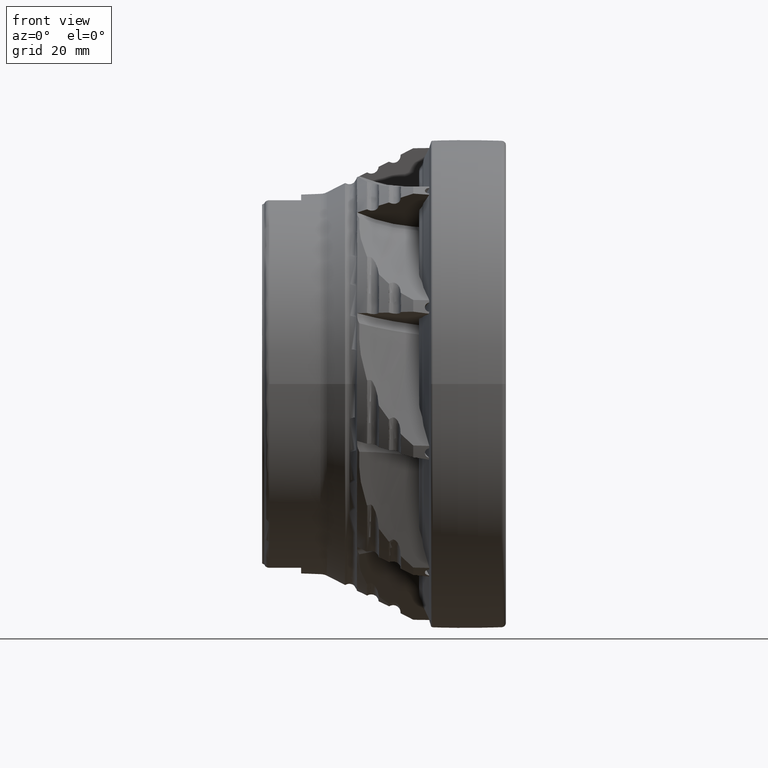
[diagram: clean part render]
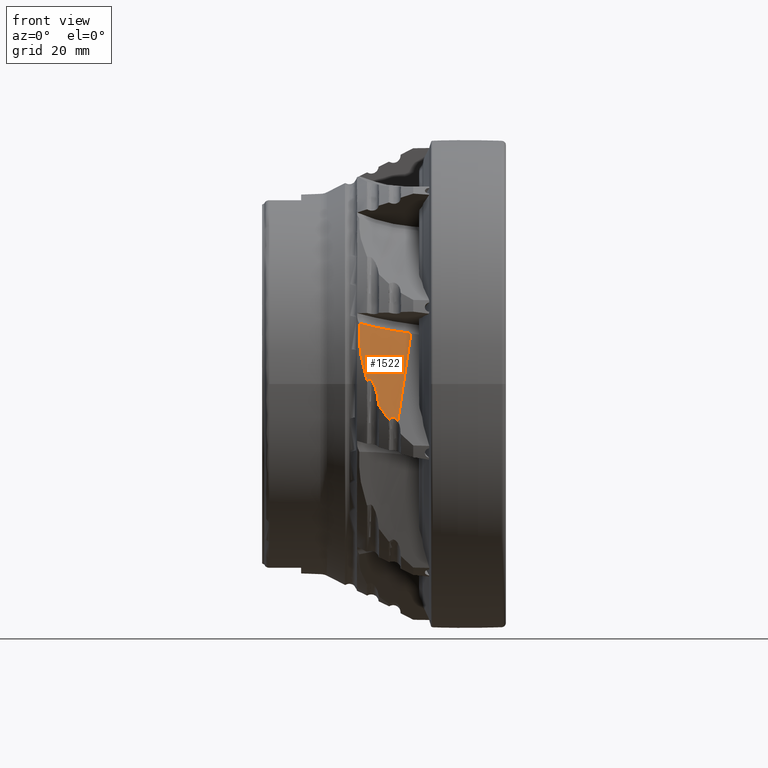
[diagram: same view with one face highlighted and labeled with its STEP entity id]
A machine part, front view. The second image highlights one B-rep face of the part: STEP entity #1522.
In plain terms, the highlighted cylindrical surface (partial cylindrical patch) has radius 28 mm, axis along (0.1392, 0.306, 0.9418).
Its self-contained STEP definition (entity closure, byte-faithful):
#44 = CARTESIAN_POINT ( 'NONE',  ( -22.96875926489109077, -45.00472758930278872, -7.251594507267260070 ) ) ;
#158 = CARTESIAN_POINT ( 'NONE',  ( -22.98806546424032504, -45.00397832215800520, -7.244968007142776223 ) ) ;
#326 = CARTESIAN_POINT ( 'NONE',  ( -22.11025351607506551, -44.83420994015719430, -6.859937855270453078 ) ) ;
#380 = CARTESIAN_POINT ( 'NONE',  ( -18.49250115703377517, -39.21173144194869309, 10.37945276571883646 ) ) ;
#395 = CARTESIAN_POINT ( 'NONE',  ( -23.05000000000023164, -44.99304776565187325, -7.196274121405544122 ) ) ;
#603 = CARTESIAN_POINT ( 'NONE',  ( -28.18350695013244334, -43.01689287361728020, 2.823640464598796029 ) ) ;
#690 = CARTESIAN_POINT ( 'NONE',  ( -21.89676350524547388, -44.83994210318814311, -6.902054841344533287 ) ) ;
#699 = CARTESIAN_POINT ( 'NONE',  ( -27.53345745296495650, -43.37508894989922226, 0.8934479850767653719 ) ) ;
#890 = CARTESIAN_POINT ( 'NONE',  ( -26.85634870981015965, -43.17586925565611722, 0.9426722451653622992 ) ) ;
#909 = CARTESIAN_POINT ( 'NONE',  ( -22.11025351607506551, -44.83420994015719430, -6.859937855270453078 ) ) ;
#948 = DIRECTION ( 'NONE',  ( 0.1391731009600655766, 0.3060096622280080170, 0.9418008996556862522 ) ) ;
#1019 = CARTESIAN_POINT ( 'NONE',  ( -24.42282978799860516, -44.57693258806386893, -5.433127917040545540 ) ) ;
#1168 = VERTEX_POINT ( 'NONE', #2145 ) ;
#1389 = CARTESIAN_POINT ( 'NONE',  ( -29.08411906360953836, -40.77115350027608542, 12.45129887066027585 ) ) ;
#1522 = ADVANCED_FACE ( 'NONE', ( #11187 ), #9491, .F. ) ;
#1545 = EDGE_CURVE ( 'NONE', #11938, #2706, #5446, .T. ) ;
#1830 = ORIENTED_EDGE ( 'NONE', *, *, #5744, .F. ) ;
#1848 = CARTESIAN_POINT ( 'NONE',  ( -22.93827435148160632, -45.00309780509473967, -7.253017972813460723 ) ) ;
#2089 = CARTESIAN_POINT ( 'NONE',  ( -22.95870276764276241, -45.00436611127459940, -7.252630009108299802 ) ) ;
#2102 = CIRCLE ( 'NONE', #17927, 28.00000000000000000 ) ;
#2145 = CARTESIAN_POINT ( 'NONE',  ( -25.12498767638395591, -44.27270740536653193, -4.049990881068440629 ) ) ;
#2706 = VERTEX_POINT ( 'NONE', #12074 ) ;
#2728 = VERTEX_POINT ( 'NONE', #17360 ) ;
#2803 = CARTESIAN_POINT ( 'NONE',  ( -27.36225597063976167, -43.36263909710893216, 0.7664139328724189903 ) ) ;
#3077 = EDGE_CURVE ( 'NONE', #5800, #1168, #12152, .T. ) ;
#3135 = CARTESIAN_POINT ( 'NONE',  ( -23.05000000000023164, -44.99304776565187325, -7.196274121405544122 ) ) ;
#3186 = CARTESIAN_POINT ( 'NONE',  ( -25.14768867587277867, -44.14983649275727373, -3.628397477588554132 ) ) ;
#3277 = CARTESIAN_POINT ( 'NONE',  ( -25.11136169306228894, -44.31470260491349222, -4.197296924912500060 ) ) ;
#3285 = CARTESIAN_POINT ( 'NONE',  ( -27.36225597063976167, -43.36263909710893216, 0.7664139328724189903 ) ) ;
#3639 = CARTESIAN_POINT ( 'NONE',  ( -22.91528225458630175, -44.99991334662693987, -7.247817678363159821 ) ) ;
#3752 = CARTESIAN_POINT ( 'NONE',  ( -22.86225597063991444, -44.98414197917850288, -7.208859829057428392 ) ) ;
#3946 = CARTESIAN_POINT ( 'NONE',  ( -25.12498767638395591, -44.27270740536653193, -4.049990881068440629 ) ) ;
#4036 = CARTESIAN_POINT ( 'NONE',  ( -21.61738121475465491, -44.88450016146625643, -7.063010324410459617 ) ) ;
#4369 = CARTESIAN_POINT ( 'NONE',  ( -25.01442926651028742, -44.38396834700520088, -4.479609703247692920 ) ) ;
#4513 = B_SPLINE_CURVE_WITH_KNOTS ( 'NONE', 3,
 ( #21622, #14400, #14513, #9354, #5833, #21516, #6172, #9579, #699, #11158 ),
 .UNSPECIFIED., .F., .F.,
 ( 4, 2, 2, 2, 4 ),
 ( 3.230959094265456331E-07, 4.019676544924590444E-05, 8.007043498906527294E-05, 0.0001598177740687010148, 0.0003193124522279801422 ),
 .UNSPECIFIED. ) ;
#4801 = VERTEX_POINT ( 'NONE', #380 ) ;
#5446 = B_SPLINE_CURVE_WITH_KNOTS ( 'NONE', 3,
 ( #5645, #603, #21204, #20397, #15099, #15201, #21649, #1389 ),
 .UNSPECIFIED., .F., .F.,
 ( 4, 2, 2, 4 ),
 ( 6.260831615518534369E-07, 0.005950258096889476413, 0.008925074103753441457, 0.01189989011061740737 ),
 .UNSPECIFIED. ) ;
#5645 = CARTESIAN_POINT ( 'NONE',  ( -27.54999999999981952, -43.36597352797302563, 0.9425677829043680456 ) ) ;
#5654 = CARTESIAN_POINT ( 'NONE',  ( -22.94863317182933926, -45.00400416242209189, -7.253666859688163271 ) ) ;
#5721 = B_SPLINE_CURVE_WITH_KNOTS ( 'NONE', 3,
 ( #12061, #3186, #13619, #13717, #19057, #15529, #6763, #8342, #17003, #6861, #11952, #10157, #18818, #20291 ),
 .UNSPECIFIED., .F., .F.,
 ( 4, 2, 2, 2, 2, 2, 4 ),
 ( 3.858238433608814822E-06, 0.001313378694123256514, 0.002622899149812903986, 0.003932419605502552110, 0.004587179833347377472, 0.004914559947269786684, 0.005241940061192195029 ),
 .UNSPECIFIED. ) ;
#5744 = EDGE_CURVE ( 'NONE', #14213, #11938, #4513, .T. ) ;
#5800 = VERTEX_POINT ( 'NONE', #15282 ) ;
#5833 = CARTESIAN_POINT ( 'NONE',  ( -27.41747669478786165, -43.38528487005625323, 0.7410884560109195496 ) ) ;
#5921 = VERTEX_POINT ( 'NONE', #21847 ) ;
#6101 = CARTESIAN_POINT ( 'NONE',  ( -18.18918041566171695, -65.17438130151347764, 21.08453608148492719 ) ) ;
#6151 = CARTESIAN_POINT ( 'NONE',  ( -27.26372194362870971, -43.30689945525789852, 0.8662397153372038971 ) ) ;
#6172 = CARTESIAN_POINT ( 'NONE',  ( -27.47128123409750344, -43.38971488848753211, 0.7790722204139125528 ) ) ;
#6272 = CARTESIAN_POINT ( 'NONE',  ( -27.14420331115535490, -43.25388783088913414, 0.9376140105472545727 ) ) ;
#6470 = ORIENTED_EDGE ( 'NONE', *, *, #11909, .F. ) ;
#6763 = CARTESIAN_POINT ( 'NONE',  ( -25.77122065532248385, -43.40572070034295393, -0.7287933845542799993 ) ) ;
#6861 = CARTESIAN_POINT ( 'NONE',  ( -26.27326181786784431, -43.20329282431373485, 0.3477560161948084483 ) ) ;
#6934 = ORIENTED_EDGE ( 'NONE', *, *, #10873, .F. ) ;
#7133 = CARTESIAN_POINT ( 'NONE',  ( -22.87097694937581949, -44.98772616340179553, -7.218427777095062225 ) ) ;
#7272 = CARTESIAN_POINT ( 'NONE',  ( -22.76711116295971493, -44.94503896938430643, -7.104474690862654818 ) ) ;
#7414 = CARTESIAN_POINT ( 'NONE',  ( -21.15278180356288118, -45.06107715933467261, -7.622982251926101682 ) ) ;
#7421 = B_SPLINE_CURVE_WITH_KNOTS ( 'NONE', 3,
 ( #19790, #18210, #7731, #890, #14605, #17999, #6272, #6151, #12785, #2803 ),
 .UNSPECIFIED., .F., .F.,
 ( 4, 2, 2, 2, 4 ),
 ( 0.005241940061192195029, 0.005461511858826388101, 0.005681083656460580306, 0.005900655454094773378, 0.006120227251728966450 ),
 .UNSPECIFIED. ) ;
#7527 = CARTESIAN_POINT ( 'NONE',  ( -22.00294876315580694, -44.83284190179112016, -6.868878886604062650 ) ) ;
#7731 = CARTESIAN_POINT ( 'NONE',  ( -26.72532341960263480, -43.16139027569173692, 0.8755269804970381431 ) ) ;
#7785 = DIRECTION ( 'NONE',  ( 0.0000000000000000000, -0.9510565162951521989, 0.3090169943749516701 ) ) ;
#7858 = ORIENTED_EDGE ( 'NONE', *, *, #16400, .F. ) ;
#8342 = CARTESIAN_POINT ( 'NONE',  ( -26.02107818437410103, -43.28496242148830220, -0.1306858168741273918 ) ) ;
#8649 = EDGE_CURVE ( 'NONE', #5921, #13513, #13527, .T. ) ;
#8693 = EDGE_LOOP ( 'NONE', ( #1830, #7858, #14010, #18773, #6470, #11283, #18207, #6934, #14919, #9040, #19978 ) ) ;
#8933 = CARTESIAN_POINT ( 'NONE',  ( -23.01398219335900919, -45.00141019264476938, -7.231046609232405054 ) ) ;
#8955 = EDGE_CURVE ( 'NONE', #2728, #5921, #18670, .T. ) ;
#9034 = CARTESIAN_POINT ( 'NONE',  ( -22.97875511630827461, -45.00456267910302444, -7.248881064218547721 ) ) ;
#9040 = ORIENTED_EDGE ( 'NONE', *, *, #16916, .T. ) ;
#9221 = CARTESIAN_POINT ( 'NONE',  ( -21.70473097207393209, -44.86585601582584104, -6.999265809534000127 ) ) ;
#9302 = VECTOR ( 'NONE', #10486, 999.9999999999998863 ) ;
#9354 = CARTESIAN_POINT ( 'NONE',  ( -27.40375987371563582, -43.38162821349826714, 0.7404000846521376911 ) ) ;
#9491 = CYLINDRICAL_SURFACE ( 'NONE', #14505, 27.99999999999985434 ) ;
#9579 = CARTESIAN_POINT ( 'NONE',  ( -27.51483147124376316, -43.38339073032499726, 0.8451716257296003620 ) ) ;
#10157 = CARTESIAN_POINT ( 'NONE',  ( -26.45778736481225835, -43.16935923649494100, 0.6167859982158101495 ) ) ;
#10486 = DIRECTION ( 'NONE',  ( 0.1391731009600655766, 0.3060096622280109591, 0.9418008996556852530 ) ) ;
#10873 = EDGE_CURVE ( 'NONE', #22190, #2728, #21759, .T. ) ;
#10884 = CARTESIAN_POINT ( 'NONE',  ( -22.25441438182830822, -44.83604786056488933, -6.847925835460367594 ) ) ;
#11004 = CARTESIAN_POINT ( 'NONE',  ( -22.86225597063991444, -44.98414197917850288, -7.208859829057428392 ) ) ;
#11158 = CARTESIAN_POINT ( 'NONE',  ( -27.54999999999981952, -43.36597352797302563, 0.9425677829043680456 ) ) ;
#11187 = FACE_OUTER_BOUND ( 'NONE', #8693, .T. ) ;
#11283 = ORIENTED_EDGE ( 'NONE', *, *, #8649, .F. ) ;
#11518 = B_SPLINE_CURVE_WITH_KNOTS ( 'NONE', 3,
 ( #13010, #19700, #1019, #4369 ),
 .UNSPECIFIED., .F., .F.,
 ( 4, 4 ),
 ( 3.159450510403044887E-07, 0.003407694063517875595 ),
 .UNSPECIFIED. ) ;
#11909 = EDGE_CURVE ( 'NONE', #13513, #5800, #11518, .T. ) ;
#11938 = VERTEX_POINT ( 'NONE', #15458 ) ;
#11952 = CARTESIAN_POINT ( 'NONE',  ( -26.33046585146527718, -43.19006534874925052, 0.4397182034967569986 ) ) ;
#12061 = CARTESIAN_POINT ( 'NONE',  ( -25.12498767638395591, -44.27270740536653193, -4.049990881068440629 ) ) ;
#12074 = CARTESIAN_POINT ( 'NONE',  ( -29.08411906360953836, -40.77115350027608542, 12.45129887066027585 ) ) ;
#12152 = B_SPLINE_CURVE_WITH_KNOTS ( 'NONE', 3,
 ( #13494, #12163, #20396, #3277, #14169, #3946 ),
 .UNSPECIFIED., .F., .F.,
 ( 4, 2, 4 ),
 ( 3.795735971186339277E-07, 0.0002305850263714441203, 0.0004607904791457695945 ),
 .UNSPECIFIED. ) ;
#12163 = CARTESIAN_POINT ( 'NONE',  ( -25.05482573333785012, -44.37079207852298168, -4.414500168347826659 ) ) ;
#12165 = DIRECTION ( 'NONE',  ( 0.1391731009600655766, 0.3060096622280080170, 0.9418008996556862522 ) ) ;
#12277 = EDGE_CURVE ( 'NONE', #22190, #4801, #18718, .T. ) ;
#12586 = CARTESIAN_POINT ( 'NONE',  ( -21.25786728276883153, -45.00295916593754697, -7.444113460433837481 ) ) ;
#12785 = CARTESIAN_POINT ( 'NONE',  ( -27.31591779571574463, -43.33486128695833628, 0.8187430333447228703 ) ) ;
#13010 = CARTESIAN_POINT ( 'NONE',  ( -23.05000000000023164, -44.99304776565187325, -7.196274121405544122 ) ) ;
#13187 = EDGE_CURVE ( 'NONE', #1168, #14954, #5721, .T. ) ;
#13384 = DIRECTION ( 'NONE',  ( 0.0000000000000000000, -0.9510565162951521989, 0.3090169943749515591 ) ) ;
#13494 = CARTESIAN_POINT ( 'NONE',  ( -25.01442926651028742, -44.38396834700520088, -4.479609703247692920 ) ) ;
#13513 = VERTEX_POINT ( 'NONE', #3135 ) ;
#13527 = B_SPLINE_CURVE_WITH_KNOTS ( 'NONE', 3,
 ( #3752, #7133, #17261, #17487, #19083, #3639, #20771, #1848, #5654, #2089, #44, #9034, #158, #20649, #8933, #15785, #19304, #17152, #395 ),
 .UNSPECIFIED., .F., .F.,
 ( 4, 3, 3, 3, 3, 3, 4 ),
 ( 3.064303213155130741E-07, 4.060563775485238197E-05, 8.186183602674923401E-05, 0.0001122934866107913246, 0.0001426337222344001895, 0.0001867248913619771588, 0.0002227577963879145127 ),
 .UNSPECIFIED. ) ;
#13619 = CARTESIAN_POINT ( 'NONE',  ( -25.19487005596099394, -44.03230393895999839, -3.209740178531740984 ) ) ;
#13717 = CARTESIAN_POINT ( 'NONE',  ( -25.33020451591677613, -43.80774248247743685, -2.376923569735671649 ) ) ;
#13828 = CARTESIAN_POINT ( 'NONE',  ( -18.49250115703377517, -65.84131389821294533, 19.03192860821747701 ) ) ;
#14010 = ORIENTED_EDGE ( 'NONE', *, *, #13187, .F. ) ;
#14169 = CARTESIAN_POINT ( 'NONE',  ( -25.12100576120564810, -44.29425982873562617, -4.123941333038388279 ) ) ;
#14213 = VERTEX_POINT ( 'NONE', #3285 ) ;
#14320 = CARTESIAN_POINT ( 'NONE',  ( -26.61025351607528577, -43.16026439012271965, 0.7788664395475520807 ) ) ;
#14400 = CARTESIAN_POINT ( 'NONE',  ( -27.37049416836428861, -43.36757755431523265, 0.7571106428210823136 ) ) ;
#14505 = AXIS2_PLACEMENT_3D ( 'NONE', #6101, #948, #7785 ) ;
#14513 = CARTESIAN_POINT ( 'NONE',  ( -27.38024484281533333, -43.37261978397274476, 0.7489375667124414937 ) ) ;
#14605 = CARTESIAN_POINT ( 'NONE',  ( -26.92950267975927048, -43.18897045096638010, 0.9637767010085037667 ) ) ;
#14919 = ORIENTED_EDGE ( 'NONE', *, *, #12277, .T. ) ;
#14954 = VERTEX_POINT ( 'NONE', #14320 ) ;
#15099 = CARTESIAN_POINT ( 'NONE',  ( -29.05691841953525056, -41.78345134474496803, 8.578256677703356203 ) ) ;
#15201 = CARTESIAN_POINT ( 'NONE',  ( -29.13277682798410595, -41.30110111447518051, 10.51270636083400767 ) ) ;
#15282 = CARTESIAN_POINT ( 'NONE',  ( -25.01442926651028742, -44.38396834700520088, -4.479609703247692920 ) ) ;
#15458 = CARTESIAN_POINT ( 'NONE',  ( -27.54999999999981952, -43.36597352797302563, 0.9425677829043680456 ) ) ;
#15529 = CARTESIAN_POINT ( 'NONE',  ( -25.63931821207545525, -43.49986416048376014, -1.138881115513836306 ) ) ;
#15785 = CARTESIAN_POINT ( 'NONE',  ( -23.02501505855357422, -44.99924131095649926, -7.221658809697503401 ) ) ;
#16400 = EDGE_CURVE ( 'NONE', #14954, #14213, #7421, .T. ) ;
#16916 = EDGE_CURVE ( 'NONE', #4801, #2706, #2102, .T. ) ;
#17003 = CARTESIAN_POINT ( 'NONE',  ( -26.11305360123122554, -43.24813356962195598, 0.06582669851058368937 ) ) ;
#17152 = CARTESIAN_POINT ( 'NONE',  ( -23.04239162819478182, -44.99534655537497230, -7.205332229503856212 ) ) ;
#17261 = CARTESIAN_POINT ( 'NONE',  ( -22.88075694319220332, -44.99115566940768929, -7.227277763677911970 ) ) ;
#17360 = CARTESIAN_POINT ( 'NONE',  ( -22.11025351607506551, -44.83420994015719430, -6.859937855270453078 ) ) ;
#17487 = CARTESIAN_POINT ( 'NONE',  ( -22.89164379097408997, -44.99416566239732163, -7.234548524557969706 ) ) ;
#17927 = AXIS2_PLACEMENT_3D ( 'NONE', #13828, #12165, #13384 ) ;
#17986 = CARTESIAN_POINT ( 'NONE',  ( -22.65774305224991636, -44.90908612384269816, -7.012030755418089178 ) ) ;
#17999 = CARTESIAN_POINT ( 'NONE',  ( -27.07497787964699398, -43.22842305262170015, 0.9611722639091304643 ) ) ;
#18207 = ORIENTED_EDGE ( 'NONE', *, *, #8955, .F. ) ;
#18210 = CARTESIAN_POINT ( 'NONE',  ( -26.66500952554513049, -43.15935031995608284, 0.8295189109603250399 ) ) ;
#18670 = B_SPLINE_CURVE_WITH_KNOTS ( 'NONE', 3,
 ( #326, #10884, #21244, #17986, #7272, #11004 ),
 .UNSPECIFIED., .F., .F.,
 ( 4, 2, 4 ),
 ( 0.008187453713002088712, 0.008622721886661483676, 0.009057990060320880374 ),
 .UNSPECIFIED. ) ;
#18718 = LINE ( 'NONE', #20963, #9302 ) ;
#18773 = ORIENTED_EDGE ( 'NONE', *, *, #3077, .F. ) ;
#18818 = CARTESIAN_POINT ( 'NONE',  ( -26.52861266414750219, -43.16162726276173345, 0.7033439360191444667 ) ) ;
#19057 = CARTESIAN_POINT ( 'NONE',  ( -25.41828181051374003, -43.70067304702241984, -1.962761535753781095 ) ) ;
#19083 = CARTESIAN_POINT ( 'NONE',  ( -22.90271266561571295, -44.99722598212824209, -7.241940851735030549 ) ) ;
#19304 = CARTESIAN_POINT ( 'NONE',  ( -23.03409179718975963, -44.99745697190494553, -7.213935466645222228 ) ) ;
#19402 = CARTESIAN_POINT ( 'NONE',  ( -21.15278180356288118, -45.06107715933467261, -7.622982251926101682 ) ) ;
#19480 = CARTESIAN_POINT ( 'NONE',  ( -21.38385935539192673, -44.94837000320863041, -7.273337435875760093 ) ) ;
#19700 = CARTESIAN_POINT ( 'NONE',  ( -23.76897510292737792, -44.77581698135674770, -6.340301995130911195 ) ) ;
#19790 = CARTESIAN_POINT ( 'NONE',  ( -26.61025351607528577, -43.16026439012271965, 0.7788664395475520807 ) ) ;
#19978 = ORIENTED_EDGE ( 'NONE', *, *, #1545, .F. ) ;
#20291 = CARTESIAN_POINT ( 'NONE',  ( -26.61025351607528577, -43.16026439012271965, 0.7788664395475520807 ) ) ;
#20396 = CARTESIAN_POINT ( 'NONE',  ( -25.07751989943573179, -44.35281786824662476, -4.342456641330267431 ) ) ;
#20397 = CARTESIAN_POINT ( 'NONE',  ( -28.97714549064813738, -42.00899139793074255, 7.613792833866686927 ) ) ;
#20649 = CARTESIAN_POINT ( 'NONE',  ( -23.00154654961679412, -45.00313219203231085, -7.239302025924192030 ) ) ;
#20771 = CARTESIAN_POINT ( 'NONE',  ( -22.92848353392786720, -45.00174175427398637, -7.250803510408380781 ) ) ;
#20963 = CARTESIAN_POINT ( 'NONE',  ( -18.49250115703377517, -39.21173144194869309, 10.37945276571883646 ) ) ;
#21204 = CARTESIAN_POINT ( 'NONE',  ( -28.60561297364391464, -42.64612739213942660, 4.731315093313152254 ) ) ;
#21244 = CARTESIAN_POINT ( 'NONE',  ( -22.40290475017879501, -44.85400549561601480, -6.881875361719687056 ) ) ;
#21516 = CARTESIAN_POINT ( 'NONE',  ( -27.45405251571191485, -43.39110474003616957, 0.7569088902701420762 ) ) ;
#21622 = CARTESIAN_POINT ( 'NONE',  ( -27.36225597063976167, -43.36263909710893216, 0.7664139328724189903 ) ) ;
#21649 = CARTESIAN_POINT ( 'NONE',  ( -29.12859013234524497, -41.04323911995439289, 11.48631378372926548 ) ) ;
#21759 = B_SPLINE_CURVE_WITH_KNOTS ( 'NONE', 3,
 ( #7414, #12586, #19480, #4036, #9221, #690, #7527, #909 ),
 .UNSPECIFIED., .F., .F.,
 ( 4, 2, 2, 4 ),
 ( 0.006891503010040061876, 0.007539478361521079197, 0.007863466037261583955, 0.008187453713002088712 ),
 .UNSPECIFIED. ) ;
#21847 = CARTESIAN_POINT ( 'NONE',  ( -22.86225597063991444, -44.98414197917850288, -7.208859829057428392 ) ) ;
#22190 = VERTEX_POINT ( 'NONE', #19402 ) ;